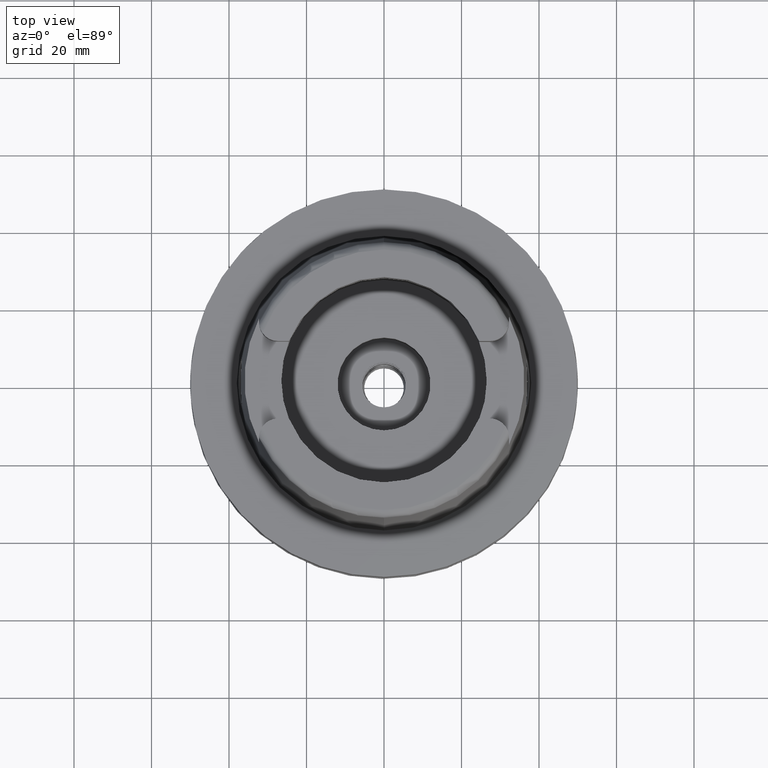
[diagram: clean part render]
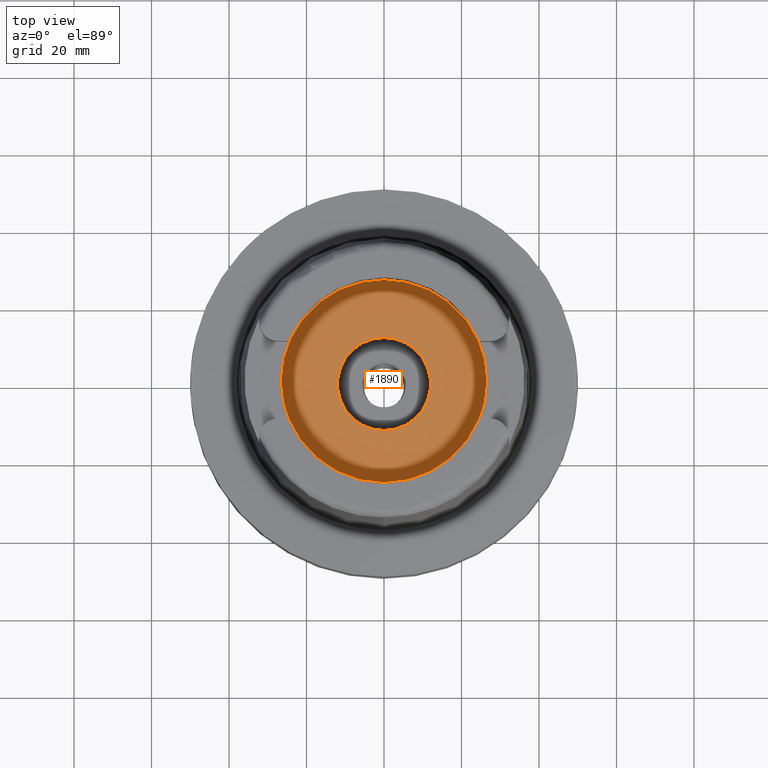
[diagram: same view with one face highlighted and labeled with its STEP entity id]
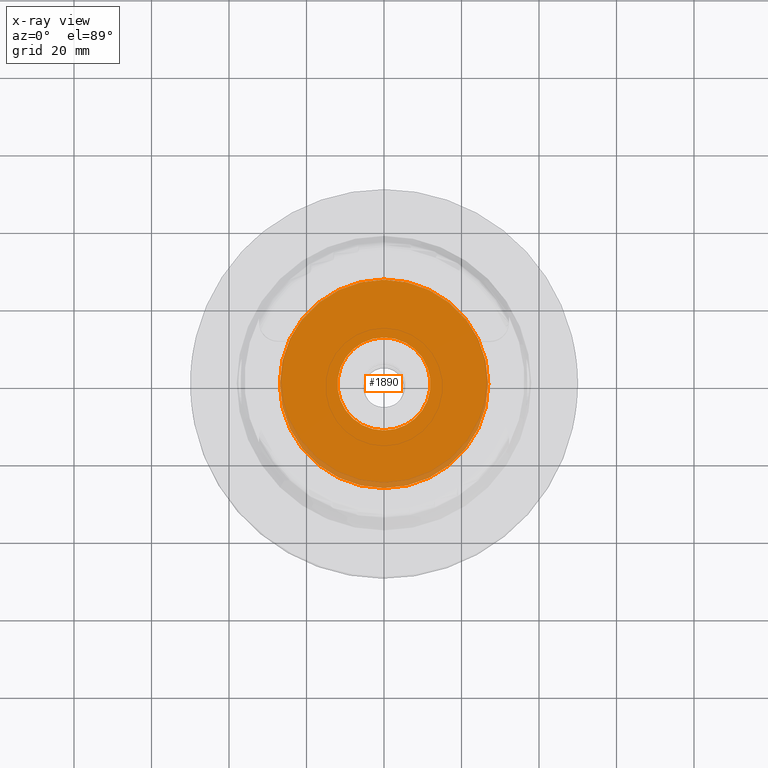
[diagram: x-ray of the same camera — body ghosted, the highlighted face saturated]
A machine part, top view. The second image highlights one B-rep face of the part: STEP entity #1890.
The next image is the same camera in x-ray: the body ghosted, the highlighted face saturated — about 5% of this face is hidden behind the body in this view.
In plain terms, the highlighted planar face has unit normal (0, 0, 1).
Its self-contained STEP definition (entity closure, byte-faithful):
#525 = DIRECTION ( 'NONE',  ( 0.0000000000000000000, 0.0000000000000000000, 1.000000000000000000 ) ) ;
#626 = FACE_BOUND ( 'NONE', #1792, .T. ) ;
#640 = CIRCLE ( 'NONE', #3886, 26.89999999999999858 ) ;
#790 = CARTESIAN_POINT ( 'NONE',  ( 0.0000000000000000000, 0.0000000000000000000, -12.44999999999999929 ) ) ;
#792 = DIRECTION ( 'NONE',  ( 1.000000000000000000, 0.0000000000000000000, 0.0000000000000000000 ) ) ;
#1194 = EDGE_CURVE ( 'NONE', #3876, #3000, #5560, .T. ) ;
#1268 = AXIS2_PLACEMENT_3D ( 'NONE', #4396, #525, #3986 ) ;
#1405 = ORIENTED_EDGE ( 'NONE', *, *, #4976, .F. ) ;
#1407 = AXIS2_PLACEMENT_3D ( 'NONE', #790, #2512, #3104 ) ;
#1432 = CARTESIAN_POINT ( 'NONE',  ( 0.0000000000000000000, -12.00000000000000000, -12.44999999999999929 ) ) ;
#1748 = ORIENTED_EDGE ( 'NONE', *, *, #1194, .F. ) ;
#1792 = EDGE_LOOP ( 'NONE', ( #4861, #1405 ) ) ;
#1890 = ADVANCED_FACE ( 'NONE', ( #3190, #626 ), #3243, .T. ) ;
#2259 = CIRCLE ( 'NONE', #1268, 12.00000000000000000 ) ;
#2313 = AXIS2_PLACEMENT_3D ( 'NONE', #4985, #4638, #792 ) ;
#2414 = DIRECTION ( 'NONE',  ( 0.0000000000000000000, 0.0000000000000000000, -1.000000000000000000 ) ) ;
#2461 = CARTESIAN_POINT ( 'NONE',  ( 0.0000000000000000000, 12.00000000000000000, -12.44999999999999929 ) ) ;
#2512 = DIRECTION ( 'NONE',  ( 0.0000000000000000000, 0.0000000000000000000, -1.000000000000000000 ) ) ;
#2835 = DIRECTION ( 'NONE',  ( 0.0000000000000000000, 1.000000000000000000, 0.0000000000000000000 ) ) ;
#2891 = CARTESIAN_POINT ( 'NONE',  ( 0.0000000000000000000, -26.89999999999999858, -12.44999999999999929 ) ) ;
#3000 = VERTEX_POINT ( 'NONE', #3423 ) ;
#3104 = DIRECTION ( 'NONE',  ( 0.0000000000000000000, -1.000000000000000000, 0.0000000000000000000 ) ) ;
#3190 = FACE_OUTER_BOUND ( 'NONE', #3439, .T. ) ;
#3243 = PLANE ( 'NONE',  #2313 ) ;
#3336 = CARTESIAN_POINT ( 'NONE',  ( 0.0000000000000000000, 0.0000000000000000000, -12.44999999999999929 ) ) ;
#3423 = CARTESIAN_POINT ( 'NONE',  ( 0.0000000000000000000, 26.89999999999999858, -12.44999999999999929 ) ) ;
#3439 = EDGE_LOOP ( 'NONE', ( #3908, #1748 ) ) ;
#3474 = EDGE_CURVE ( 'NONE', #5131, #4981, #5369, .T. ) ;
#3500 = CARTESIAN_POINT ( 'NONE',  ( 0.0000000000000000000, 0.0000000000000000000, -12.44999999999999929 ) ) ;
#3812 = EDGE_CURVE ( 'NONE', #3000, #3876, #640, .T. ) ;
#3876 = VERTEX_POINT ( 'NONE', #2891 ) ;
#3886 = AXIS2_PLACEMENT_3D ( 'NONE', #3336, #2414, #2835 ) ;
#3908 = ORIENTED_EDGE ( 'NONE', *, *, #3812, .F. ) ;
#3925 = AXIS2_PLACEMENT_3D ( 'NONE', #3500, #4897, #4466 ) ;
#3986 = DIRECTION ( 'NONE',  ( 0.0000000000000000000, -1.000000000000000000, 0.0000000000000000000 ) ) ;
#4396 = CARTESIAN_POINT ( 'NONE',  ( 0.0000000000000000000, 0.0000000000000000000, -12.44999999999999929 ) ) ;
#4466 = DIRECTION ( 'NONE',  ( 0.0000000000000000000, 1.000000000000000000, 0.0000000000000000000 ) ) ;
#4638 = DIRECTION ( 'NONE',  ( 0.0000000000000000000, 0.0000000000000000000, 1.000000000000000000 ) ) ;
#4861 = ORIENTED_EDGE ( 'NONE', *, *, #3474, .F. ) ;
#4897 = DIRECTION ( 'NONE',  ( 0.0000000000000000000, 0.0000000000000000000, 1.000000000000000000 ) ) ;
#4976 = EDGE_CURVE ( 'NONE', #4981, #5131, #2259, .T. ) ;
#4981 = VERTEX_POINT ( 'NONE', #1432 ) ;
#4985 = CARTESIAN_POINT ( 'NONE',  ( 0.0000000000000000000, 0.0000000000000000000, -12.44999999999999929 ) ) ;
#5131 = VERTEX_POINT ( 'NONE', #2461 ) ;
#5369 = CIRCLE ( 'NONE', #3925, 12.00000000000000000 ) ;
#5560 = CIRCLE ( 'NONE', #1407, 26.89999999999999858 ) ;